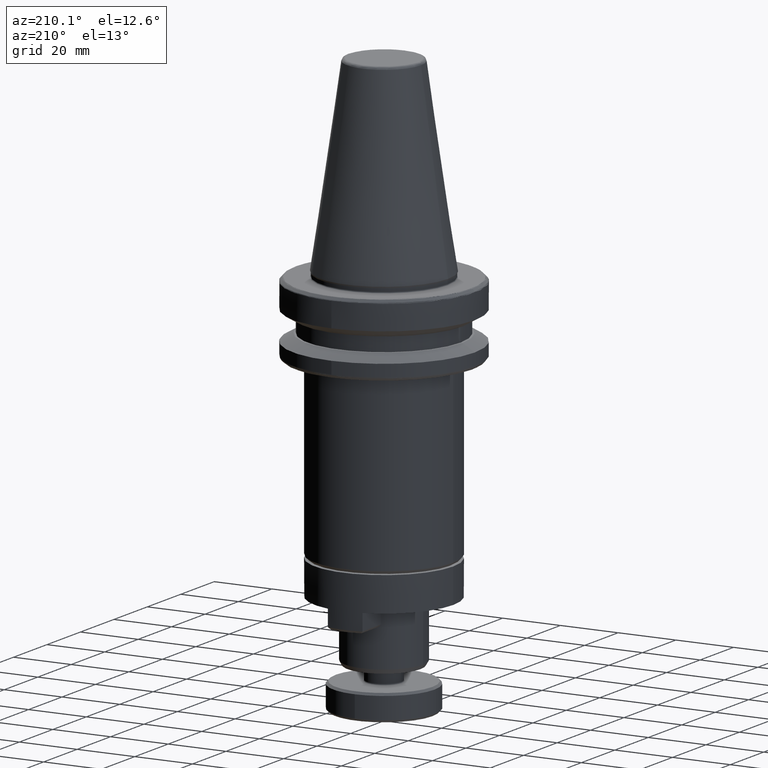
[diagram: clean part render]
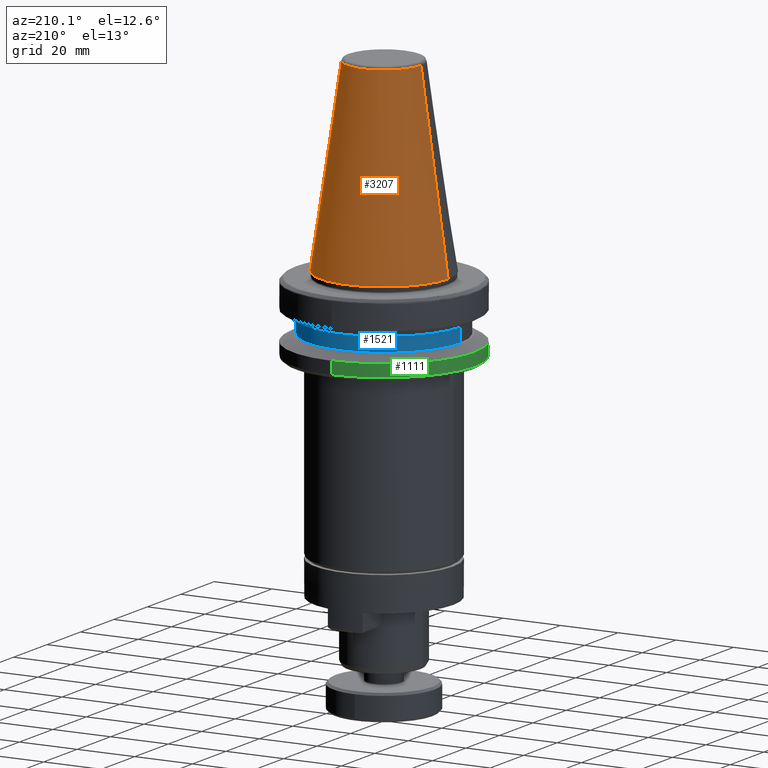
[diagram: same view with three faces highlighted in distinct colors, each labeled with its STEP entity id]
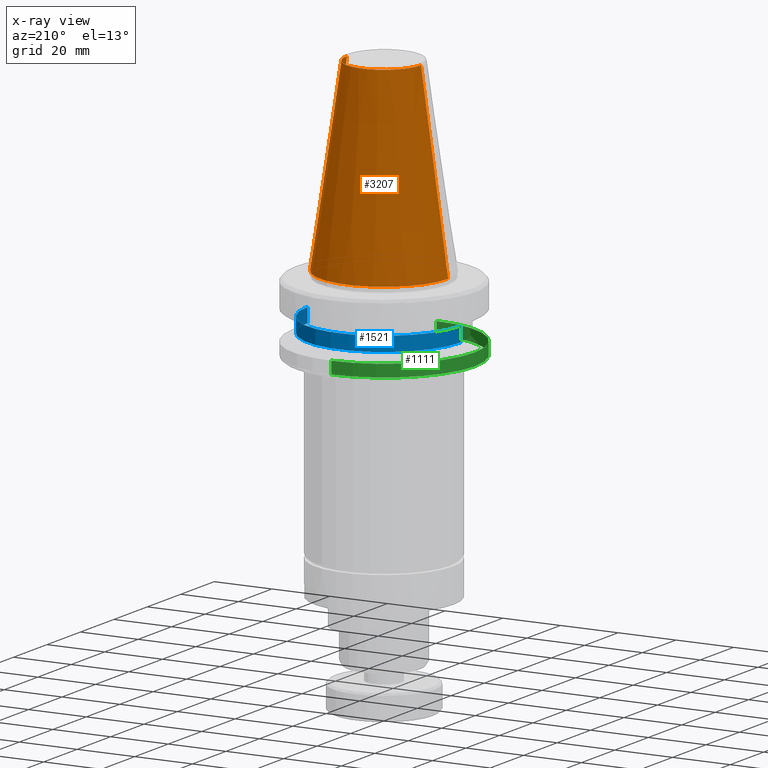
[diagram: x-ray of the same camera — body ghosted, the three highlighted faces saturated]
A machine part, auxiliary view with three faces highlighted in distinct colors.
The next image is the same camera in x-ray (body ghosted, the three faces saturated) — at least one of them is partly hidden behind the body in this view.
Their STEP definitions:

[orange] entity #3207 — the highlighted conical surface has half-angle 8.297 deg.
#69 = CARTESIAN_POINT ( 'NONE',  ( -12.81219950700000300, 0.0000000000000000000, 64.54430822700000200 ) ) ;
#367 = VERTEX_POINT ( 'NONE', #1233 ) ;
#395 = CARTESIAN_POINT ( 'NONE',  ( 22.22499999999999800, 2.721777511104992100E-015, 0.0000000000000000000 ) ) ;
#484 = VERTEX_POINT ( 'NONE', #2641 ) ;
#509 = EDGE_CURVE ( 'NONE', #1691, #3362, #3277, .T. ) ;
#627 = ORIENTED_EDGE ( 'NONE', *, *, #1309, .F. ) ;
#783 = VECTOR ( 'NONE', #3668, 1000.000000000000000 ) ;
#942 = CARTESIAN_POINT ( 'NONE',  ( 0.0000000000000000000, 0.0000000000000000000, 64.54430822699997300 ) ) ;
#991 = DIRECTION ( 'NONE',  ( 0.0000000000000000000, 0.0000000000000000000, 1.000000000000000000 ) ) ;
#1196 = EDGE_LOOP ( 'NONE', ( #2432, #1772, #3129, #627 ) ) ;
#1233 = CARTESIAN_POINT ( 'NONE',  ( -22.22499999999999800, 0.0000000000000000000, 0.0000000000000000000 ) ) ;
#1236 = DIRECTION ( 'NONE',  ( -1.000000000000000000, 8.881784197001252300E-016, 2.166339635943424900E-015 ) ) ;
#1309 = EDGE_CURVE ( 'NONE', #484, #367, #1362, .T. ) ;
#1362 = LINE ( 'NONE', #69, #783 ) ;
#1474 = VECTOR ( 'NONE', #2727, 1000.000000000000000 ) ;
#1691 = VERTEX_POINT ( 'NONE', #1713 ) ;
#1713 = CARTESIAN_POINT ( 'NONE',  ( 12.81219950696690200, -3.941739068562204500E-009, 64.54430822700854300 ) ) ;
#1769 = CARTESIAN_POINT ( 'NONE',  ( 12.81219950700000300, 1.569041911628485000E-015, 64.54430822700000200 ) ) ;
#1772 = ORIENTED_EDGE ( 'NONE', *, *, #509, .T. ) ;
#1801 = CARTESIAN_POINT ( 'NONE',  ( 0.0000000000000000000, 0.0000000000000000000, 64.54430822700000200 ) ) ;
#1820 = AXIS2_PLACEMENT_3D ( 'NONE', #1801, #3568, #3812 ) ;
#2116 = EDGE_CURVE ( 'NONE', #3362, #367, #2712, .T. ) ;
#2432 = ORIENTED_EDGE ( 'NONE', *, *, #3242, .F. ) ;
#2509 = AXIS2_PLACEMENT_3D ( 'NONE', #3342, #991, #3778 ) ;
#2641 = CARTESIAN_POINT ( 'NONE',  ( -12.81219950696881500, -1.150453881886354600E-009, 64.54430822699541200 ) ) ;
#2712 = CIRCLE ( 'NONE', #2509, 22.22499999999999800 ) ;
#2727 = DIRECTION ( 'NONE',  ( 0.1443082272688266400, 1.767266086153973400E-017, -0.9895327864919528600 ) ) ;
#3014 = DIRECTION ( 'NONE',  ( -0.0000000000000000000, -0.0000000000000000000, 1.000000000000000000 ) ) ;
#3018 = AXIS2_PLACEMENT_3D ( 'NONE', #942, #3014, #1236 ) ;
#3129 = ORIENTED_EDGE ( 'NONE', *, *, #2116, .T. ) ;
#3185 = CIRCLE ( 'NONE', #3018, 12.81219950700000300 ) ;
#3205 = CONICAL_SURFACE ( 'NONE', #1820, 12.81219950700000300, 0.1448138465489547400 ) ;
#3207 = ADVANCED_FACE ( 'NONE', ( #3265 ), #3205, .T. ) ;
#3242 = EDGE_CURVE ( 'NONE', #1691, #484, #3185, .T. ) ;
#3265 = FACE_OUTER_BOUND ( 'NONE', #1196, .T. ) ;
#3277 = LINE ( 'NONE', #1769, #1474 ) ;
#3342 = CARTESIAN_POINT ( 'NONE',  ( 0.0000000000000000000, 0.0000000000000000000, 0.0000000000000000000 ) ) ;
#3362 = VERTEX_POINT ( 'NONE', #395 ) ;
#3568 = DIRECTION ( 'NONE',  ( 0.0000000000000000000, 0.0000000000000000000, -1.000000000000000000 ) ) ;
#3668 = DIRECTION ( 'NONE',  ( -0.1443082272688266400, 0.0000000000000000000, -0.9895327864919528600 ) ) ;
#3778 = DIRECTION ( 'NONE',  ( 1.000000000000000000, 0.0000000000000000000, 0.0000000000000000000 ) ) ;
#3812 = DIRECTION ( 'NONE',  ( -1.000000000000000000, 0.0000000000000000000, 0.0000000000000000000 ) ) ;

[blue] entity #1521 — the highlighted cylindrical surface (partial cylindrical patch) has radius 26.5 mm, axis along (0, 0, 1).
#34 = EDGE_CURVE ( 'NONE', #3717, #975, #2163, .T. ) ;
#157 = VERTEX_POINT ( 'NONE', #3384 ) ;
#204 = EDGE_LOOP ( 'NONE', ( #3020, #1092, #3511, #3284 ) ) ;
#220 = CARTESIAN_POINT ( 'NONE',  ( 0.0000000000000000000, 0.0000000000000000000, -14.10000000000000100 ) ) ;
#267 = EDGE_CURVE ( 'NONE', #157, #1695, #1959, .T. ) ;
#390 = CARTESIAN_POINT ( 'NONE',  ( 26.50000000000000000, 0.0000000000000000000, -19.10000000000000500 ) ) ;
#529 = DIRECTION ( 'NONE',  ( 1.000000000000000000, 0.0000000000000000000, 0.0000000000000000000 ) ) ;
#564 = CARTESIAN_POINT ( 'NONE',  ( 26.50000000000000000, 0.0000000000000000000, -19.10000000000000100 ) ) ;
#670 = DIRECTION ( 'NONE',  ( 0.0000000000000000000, 0.0000000000000000000, 1.000000000000000000 ) ) ;
#936 = DIRECTION ( 'NONE',  ( 0.0000000000000000000, 0.0000000000000000000, 1.000000000000000000 ) ) ;
#951 = DIRECTION ( 'NONE',  ( 1.000000000000000000, 0.0000000000000000000, 0.0000000000000000000 ) ) ;
#960 = EDGE_CURVE ( 'NONE', #157, #3717, #2241, .T. ) ;
#961 = CARTESIAN_POINT ( 'NONE',  ( 0.0000000000000000000, 0.0000000000000000000, -19.10000000000000100 ) ) ;
#975 = VERTEX_POINT ( 'NONE', #1652 ) ;
#1092 = ORIENTED_EDGE ( 'NONE', *, *, #267, .T. ) ;
#1247 = CARTESIAN_POINT ( 'NONE',  ( -26.50000000000000000, 3.245314017740485800E-015, -19.10000000000000100 ) ) ;
#1319 = CARTESIAN_POINT ( 'NONE',  ( 0.0000000000000000000, 0.0000000000000000000, -19.10000000000000500 ) ) ;
#1453 = DIRECTION ( 'NONE',  ( 1.000000000000000000, 0.0000000000000000000, 0.0000000000000000000 ) ) ;
#1521 = ADVANCED_FACE ( 'NONE', ( #2916 ), #3270, .T. ) ;
#1536 = DIRECTION ( 'NONE',  ( 0.0000000000000000000, 0.0000000000000000000, 1.000000000000000000 ) ) ;
#1652 = CARTESIAN_POINT ( 'NONE',  ( 26.50000000000000000, 0.0000000000000000000, -14.10000000000000100 ) ) ;
#1695 = VERTEX_POINT ( 'NONE', #1716 ) ;
#1716 = CARTESIAN_POINT ( 'NONE',  ( -26.50000000000000000, 3.245314017740485800E-015, -14.10000000000000100 ) ) ;
#1959 = LINE ( 'NONE', #1247, #2771 ) ;
#1961 = AXIS2_PLACEMENT_3D ( 'NONE', #220, #2284, #529 ) ;
#2153 = CIRCLE ( 'NONE', #1961, 26.50000000000000000 ) ;
#2163 = LINE ( 'NONE', #564, #3660 ) ;
#2189 = AXIS2_PLACEMENT_3D ( 'NONE', #961, #936, #951 ) ;
#2241 = CIRCLE ( 'NONE', #3532, 26.50000000000000000 ) ;
#2284 = DIRECTION ( 'NONE',  ( 0.0000000000000000000, 0.0000000000000000000, 1.000000000000000000 ) ) ;
#2663 = EDGE_CURVE ( 'NONE', #975, #1695, #2153, .T. ) ;
#2771 = VECTOR ( 'NONE', #670, 1000.000000000000000 ) ;
#2916 = FACE_OUTER_BOUND ( 'NONE', #204, .T. ) ;
#3020 = ORIENTED_EDGE ( 'NONE', *, *, #960, .F. ) ;
#3270 = CYLINDRICAL_SURFACE ( 'NONE', #2189, 26.50000000000000000 ) ;
#3284 = ORIENTED_EDGE ( 'NONE', *, *, #34, .F. ) ;
#3384 = CARTESIAN_POINT ( 'NONE',  ( -26.50000000000000000, 3.245314017740485800E-015, -19.10000000000000500 ) ) ;
#3403 = DIRECTION ( 'NONE',  ( -0.0000000000000000000, -0.0000000000000000000, -1.000000000000000000 ) ) ;
#3511 = ORIENTED_EDGE ( 'NONE', *, *, #2663, .F. ) ;
#3532 = AXIS2_PLACEMENT_3D ( 'NONE', #1319, #3403, #1453 ) ;
#3660 = VECTOR ( 'NONE', #1536, 1000.000000000000000 ) ;
#3717 = VERTEX_POINT ( 'NONE', #390 ) ;

[green] entity #1111 — the highlighted cylindrical surface (partial cylindrical patch) has radius 31.5 mm, axis along (0, -0, 1).
#40 = DIRECTION ( 'NONE',  ( 0.0000000000000000000, -5.507058653894625200E-017, 1.000000000000000000 ) ) ;
#47 = ORIENTED_EDGE ( 'NONE', *, *, #153, .T. ) ;
#51 = CIRCLE ( 'NONE', #2618, 31.50000000000000000 ) ;
#55 = VECTOR ( 'NONE', #3369, 1000.000000000000000 ) ;
#153 = EDGE_CURVE ( 'NONE', #2346, #3788, #1012, .T. ) ;
#259 = CARTESIAN_POINT ( 'NONE',  ( 0.0000000000000000000, 0.0000000000000000000, -25.83431457500000100 ) ) ;
#275 = ORIENTED_EDGE ( 'NONE', *, *, #3227, .T. ) ;
#286 = CARTESIAN_POINT ( 'NONE',  ( 3.857637417314162700E-015, 31.50000000000000000, -25.83431457497091800 ) ) ;
#343 = DIRECTION ( 'NONE',  ( -0.0000000000000000000, -0.0000000000000000000, -1.000000000000000000 ) ) ;
#410 = CIRCLE ( 'NONE', #2876, 31.50000000001813300 ) ;
#500 = ORIENTED_EDGE ( 'NONE', *, *, #3438, .T. ) ;
#690 = AXIS2_PLACEMENT_3D ( 'NONE', #259, #40, #3121 ) ;
#693 = DIRECTION ( 'NONE',  ( -1.000000000000000000, 0.0000000000000000000, 0.0000000000000000000 ) ) ;
#726 = DIRECTION ( 'NONE',  ( -0.0000000000000000000, 1.101411730781967500E-016, -1.000000000000000000 ) ) ;
#833 = VECTOR ( 'NONE', #1903, 1000.000000000000000 ) ;
#865 = VERTEX_POINT ( 'NONE', #286 ) ;
#872 = CYLINDRICAL_SURFACE ( 'NONE', #690, 31.50000000000000000 ) ;
#914 = VERTEX_POINT ( 'NONE', #2381 ) ;
#1010 = AXIS2_PLACEMENT_3D ( 'NONE', #1348, #1354, #1360 ) ;
#1012 = CIRCLE ( 'NONE', #3557, 31.50000000000000000 ) ;
#1111 = ADVANCED_FACE ( 'NONE', ( #2588 ), #872, .T. ) ;
#1315 = CARTESIAN_POINT ( 'NONE',  ( 3.857637417314162700E-015, 31.50000000000000000, -21.58088804094612800 ) ) ;
#1348 = CARTESIAN_POINT ( 'NONE',  ( 0.0000000000000000000, 0.0000000000000000000, -25.83431457497092200 ) ) ;
#1354 = DIRECTION ( 'NONE',  ( 0.0000000000000000000, -1.101411730781967500E-016, -1.000000000000000000 ) ) ;
#1360 = DIRECTION ( 'NONE',  ( 0.0000000000000000000, 1.000000000000000000, -1.101411730778291100E-016 ) ) ;
#1540 = CARTESIAN_POINT ( 'NONE',  ( 0.0000000000000000000, -31.50000000000000000, -21.58088804094612800 ) ) ;
#1576 = EDGE_CURVE ( 'NONE', #2575, #914, #1605, .T. ) ;
#1599 = ORIENTED_EDGE ( 'NONE', *, *, #3769, .F. ) ;
#1605 = CIRCLE ( 'NONE', #1010, 31.50000000001813300 ) ;
#1903 = DIRECTION ( 'NONE',  ( 0.0000000000000000000, -5.507058653894625200E-017, 1.000000000000000000 ) ) ;
#1981 = ORIENTED_EDGE ( 'NONE', *, *, #1576, .F. ) ;
#2110 = CARTESIAN_POINT ( 'NONE',  ( 0.0000000000000000000, 0.0000000000000000000, -21.58088804094612800 ) ) ;
#2173 = CARTESIAN_POINT ( 'NONE',  ( 0.0000000000000000000, -31.50000000000000000, -25.83431457500000100 ) ) ;
#2221 = CARTESIAN_POINT ( 'NONE',  ( -31.50000000000000000, 0.0000000000000000000, -21.58088804094612800 ) ) ;
#2346 = VERTEX_POINT ( 'NONE', #2221 ) ;
#2381 = CARTESIAN_POINT ( 'NONE',  ( -31.50000000001359300, -4.845568498675163300E-009, -25.83431457497197700 ) ) ;
#2404 = DIRECTION ( 'NONE',  ( -1.000000000000000000, 0.0000000000000000000, 0.0000000000000000000 ) ) ;
#2492 = CARTESIAN_POINT ( 'NONE',  ( 0.0000000000000000000, 0.0000000000000000000, -25.83431457497092200 ) ) ;
#2514 = DIRECTION ( 'NONE',  ( -0.0000000000000000000, -0.0000000000000000000, -1.000000000000000000 ) ) ;
#2518 = CARTESIAN_POINT ( 'NONE',  ( 0.0000000000000000000, -31.50000000000000000, -25.83431457497091800 ) ) ;
#2535 = EDGE_LOOP ( 'NONE', ( #1599, #3260, #1981, #500, #275, #47 ) ) ;
#2575 = VERTEX_POINT ( 'NONE', #2518 ) ;
#2588 = FACE_OUTER_BOUND ( 'NONE', #2535, .T. ) ;
#2618 = AXIS2_PLACEMENT_3D ( 'NONE', #2110, #343, #2404 ) ;
#2756 = LINE ( 'NONE', #2173, #55 ) ;
#2794 = DIRECTION ( 'NONE',  ( 0.0000000000000000000, 1.000000000000000000, 1.101411730778291100E-016 ) ) ;
#2876 = AXIS2_PLACEMENT_3D ( 'NONE', #2492, #726, #2794 ) ;
#2993 = VERTEX_POINT ( 'NONE', #1540 ) ;
#3121 = DIRECTION ( 'NONE',  ( 0.0000000000000000000, -1.000000000000000000, 0.0000000000000000000 ) ) ;
#3133 = CARTESIAN_POINT ( 'NONE',  ( 0.0000000000000000000, 0.0000000000000000000, -21.58088804094612800 ) ) ;
#3227 = EDGE_CURVE ( 'NONE', #2993, #2346, #51, .T. ) ;
#3260 = ORIENTED_EDGE ( 'NONE', *, *, #3752, .F. ) ;
#3369 = DIRECTION ( 'NONE',  ( 0.0000000000000000000, -5.507058653894625200E-017, 1.000000000000000000 ) ) ;
#3438 = EDGE_CURVE ( 'NONE', #2575, #2993, #2756, .T. ) ;
#3557 = AXIS2_PLACEMENT_3D ( 'NONE', #3133, #2514, #693 ) ;
#3661 = CARTESIAN_POINT ( 'NONE',  ( 3.857637417314162700E-015, 31.50000000000000000, -25.83431457500000100 ) ) ;
#3716 = LINE ( 'NONE', #3661, #833 ) ;
#3752 = EDGE_CURVE ( 'NONE', #914, #865, #410, .T. ) ;
#3769 = EDGE_CURVE ( 'NONE', #865, #3788, #3716, .T. ) ;
#3788 = VERTEX_POINT ( 'NONE', #1315 ) ;